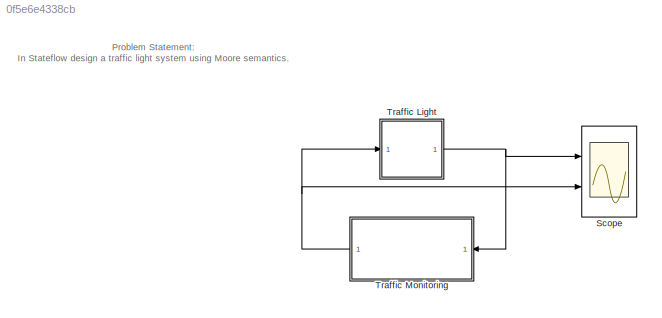
MODEL slx_0f5e6e4338cb
KIND model
CONFIG AbsTol = auto
CONFIG EnableMultiTasking = on
CONFIG FixedStep = .1
CONFIG MaxStep = auto
CONFIG MinStep = auto
CONFIG RelTol = 1e-3
CONFIG SampleTimeConstraint = Unconstrained
CONFIG Solver = FixedStepDiscrete
CONFIG SolverName = FixedStepDiscrete
CONFIG StartTime = 0.0
CONFIG StopTime = 150
BLOCK [Scope] Scope
  Floating = off
  NumInputPorts = 2
  Ports = [2]
  ScopeSpecificationString = Simulink.scopes.TimeScopeBlockCfg('CurrentConfiguration', extmgr.ConfigurationSet(extmgr.Configuration('Core','General UI',true),extmgr.Configuration('Core','Source UI',true),extmgr.Configuration('Sources','WiredSimulink',true,'DataLoggingVariableName','ScopeData1','DataLoggingSaveFormat','StructureWithTime','DataLoggingLimitDataPoints',true,'DataLoggingDecimation','1'),extmgr.Configuration('Visua...<+2493ch>
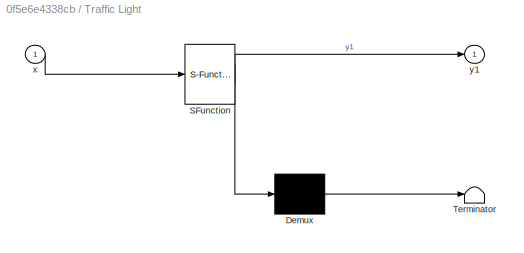
BLOCK [SubSystem] Traffic Light
  ErrorFcn = Stateflow.Translate.translate
  PermitHierarchicalResolution = ExplicitOnly
  Ports = [1, 1]
  RequestExecContextInheritance = off
  SFBlockType = Chart
  TreatAsAtomicUnit = on
BLOCK [Demux] Traffic Light/ Demux 
  Outputs = 1
  Ports = [1, 1]
BLOCK [S-Function] Traffic Light/ SFunction 
  EnableBusSupport = on
  FunctionName = sf_sfun
  PortCounts = [1 2]
  Ports = [1, 2]
  SFcnIsStateOwnerBlock = off
  SFunctionDeploymentMode = off
  Tag = Stateflow S-Function 3
BLOCK [Terminator] Traffic Light/ Terminator 
BLOCK [Inport] Traffic Light/x
BLOCK [Outport] Traffic Light/y1
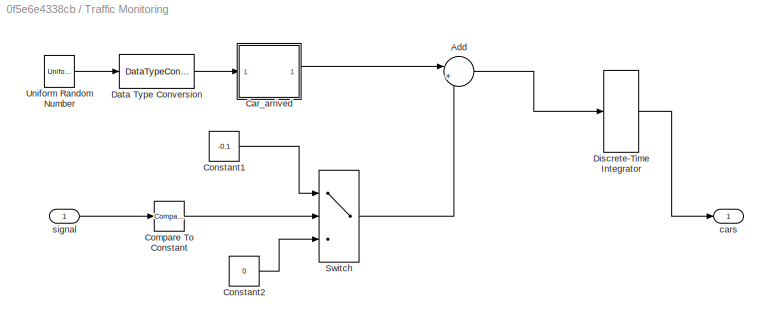
BLOCK [SubSystem] Traffic Monitoring
  Ports = [1, 1]
  RequestExecContextInheritance = off
BLOCK [Sum] Traffic Monitoring/Add
  Inputs = |++
  Ports = [2, 1]
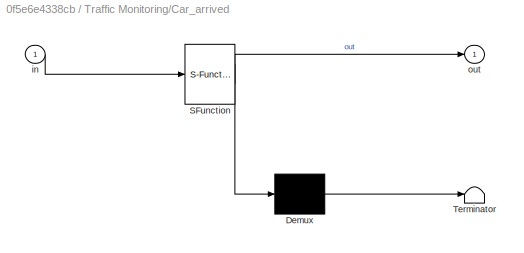
BLOCK [SubSystem] Traffic Monitoring/Car_arrived
  ErrorFcn = Stateflow.Translate.translate
  PermitHierarchicalResolution = ExplicitOnly
  Ports = [1, 1]
  RequestExecContextInheritance = off
  SFBlockType = Chart
  TreatAsAtomicUnit = on
BLOCK [Demux] Traffic Monitoring/Car_arrived/ Demux 
  Outputs = 1
  Ports = [1, 1]
BLOCK [S-Function] Traffic Monitoring/Car_arrived/ SFunction 
  EnableBusSupport = on
  FunctionName = sf_sfun
  PortCounts = [1 2]
  Ports = [1, 2]
  SFcnIsStateOwnerBlock = off
  SFunctionDeploymentMode = off
  Tag = Stateflow S-Function 1
BLOCK [Terminator] Traffic Monitoring/Car_arrived/ Terminator 
BLOCK [Inport] Traffic Monitoring/Car_arrived/in
BLOCK [Outport] Traffic Monitoring/Car_arrived/out
  VectorParamsAs1DForOutWhenUnconnected = off
BLOCK [Reference] Traffic Monitoring/Compare To Constant  REF=simulink/Logic and Bit
Operations/Compare
To Constant
  Ports = [1, 1]
  SourceBlock = simulink/Logic and Bit\nOperations/Compare\nTo Constant
  SourceProductBaseCode = SL
  SourceType = Compare To Constant
BLOCK [Constant] Traffic Monitoring/Constant1
  Value = -0.1
BLOCK [Constant] Traffic Monitoring/Constant2
  Value = 0
BLOCK [DataTypeConversion] Traffic Monitoring/Data Type Conversion
  RndMeth = Floor
  SaturateOnIntegerOverflow = off
BLOCK [DiscreteIntegrator] Traffic Monitoring/Discrete-Time Integrator
  ICPrevOutput = DiscIntNeverNeededParam
  ICPrevScaledInput = DiscIntNeverNeededParam
  LimitOutput = on
  LowerSaturationLimit = 0
  Ports = [1, 1]
  SampleTime = -1
BLOCK [Switch] Traffic Monitoring/Switch
  Criteria = u2 ~= 0
  InputSameDT = off
  SaturateOnIntegerOverflow = off
BLOCK [UniformRandomNumber] Traffic Monitoring/Uniform Random Number
  Maximum = 100
  Minimum = 0
  SampleTime = 0
  Seed = 177836
BLOCK [Outport] Traffic Monitoring/cars
  VectorParamsAs1DForOutWhenUnconnected = off
BLOCK [Inport] Traffic Monitoring/signal
ANNOTATION (root): Problem Statement: In Stateflow design a traffic light system using Moore semantics.
NET Traffic Light:1 -> Scope:1, Traffic Monitoring:1
LINE Traffic Monitoring/Add:1 -> Traffic Monitoring/Discrete-Time Integrator:1
LINE Traffic Monitoring/Car_arrived:1 -> Traffic Monitoring/Add:1
LINE Traffic Monitoring/Compare To Constant:1 -> Traffic Monitoring/Switch:2
LINE Traffic Monitoring/Constant1:1 -> Traffic Monitoring/Switch:1
LINE Traffic Monitoring/Constant2:1 -> Traffic Monitoring/Switch:3
LINE Traffic Monitoring/Data Type Conversion:1 -> Traffic Monitoring/Car_arrived:1
LINE Traffic Monitoring/Discrete-Time Integrator:1 -> Traffic Monitoring/cars:1
LINE Traffic Monitoring/Switch:1 -> Traffic Monitoring/Add:2
LINE Traffic Monitoring/Uniform Random Number:1 -> Traffic Monitoring/Data Type Conversion:1
LINE Traffic Monitoring/signal:1 -> Traffic Monitoring/Compare To Constant:1
NET Traffic Monitoring:1 -> Scope:2, Traffic Light:1
note: NET lines group one-source signal fan-out (src -> all destinations, sorted); 1:1 wires keep LINE
CHART Traffic Monitoring/Car_arrived states=0 transitions=1
CHART Traffic Light states=3 transitions=4
  STATE_LABEL 'Stop\ny1 = RED;'
  STATE_LABEL 'Wait\ny1 = YELLOW;\n'
  STATE_LABEL 'Go\ny1 = GREEN;\n'
CHART  states=0 transitions=0
CHART  states=0 transitions=0
